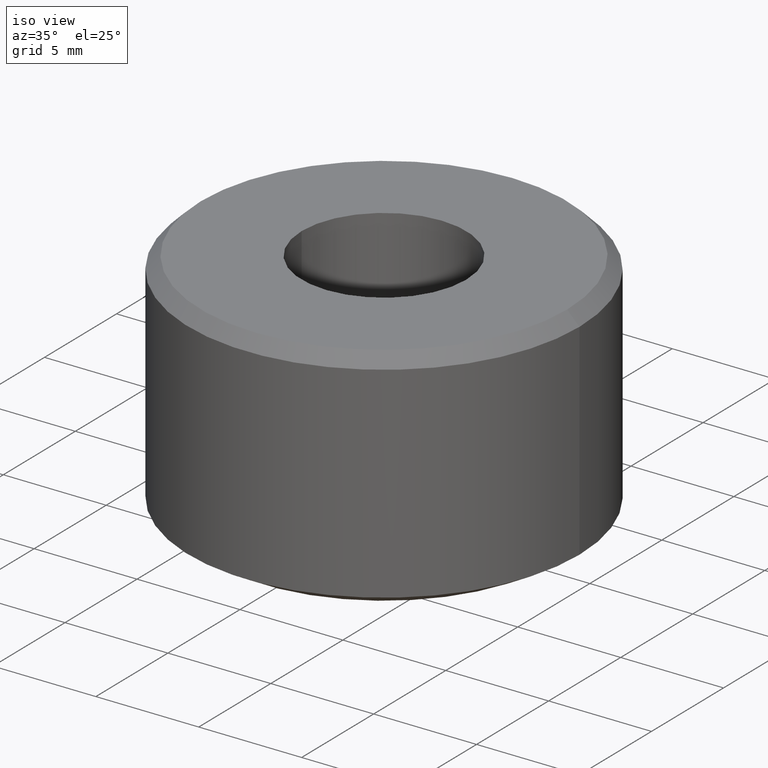
[diagram: clean part render]
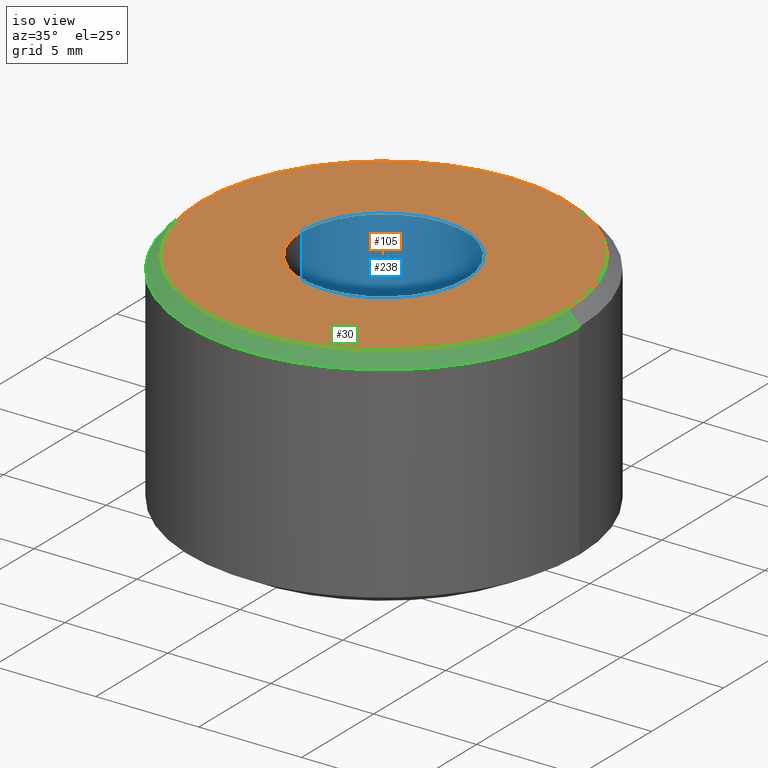
[diagram: same view with three faces highlighted in distinct colors, each labeled with its STEP entity id]
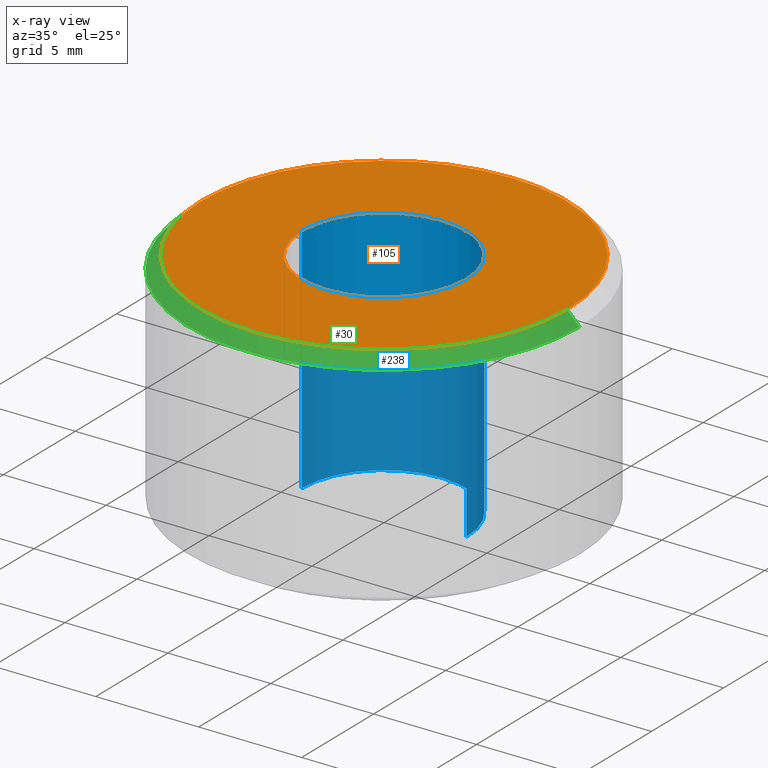
[diagram: x-ray of the same camera — body ghosted, the three highlighted faces saturated]
A machine part, iso view with three faces highlighted in distinct colors.
The next image is the same camera in x-ray (body ghosted, the three faces saturated) — at least one of them is partly hidden behind the body in this view.
Their STEP definitions:

[orange] entity #105 — the highlighted planar face has unit normal (0, 0, -1).
#5 = FACE_OUTER_BOUND ( 'NONE', #291, .T. ) ;
#9 = VERTEX_POINT ( 'NONE', #67 ) ;
#13 = CIRCLE ( 'NONE', #83, 8.900000000000249000 ) ;
#15 = AXIS2_PLACEMENT_3D ( 'NONE', #348, #104, #188 ) ;
#39 = VERTEX_POINT ( 'NONE', #250 ) ;
#40 = VERTEX_POINT ( 'NONE', #340 ) ;
#41 = DIRECTION ( 'NONE',  ( -0.0000000000000000000, -0.0000000000000000000, 1.000000000000000000 ) ) ;
#50 = DIRECTION ( 'NONE',  ( 1.000000000000000000, 0.0000000000000000000, 0.0000000000000000000 ) ) ;
#51 = EDGE_CURVE ( 'NONE', #39, #9, #344, .T. ) ;
#67 = CARTESIAN_POINT ( 'NONE',  ( -8.900000000000249000, 0.0000000000000000000, 11.29999999999969200 ) ) ;
#71 = EDGE_CURVE ( 'NONE', #40, #255, #140, .T. ) ;
#83 = AXIS2_PLACEMENT_3D ( 'NONE', #148, #126, #50 ) ;
#90 = CARTESIAN_POINT ( 'NONE',  ( 0.0000000000000000000, 0.0000000000000000000, 11.29999999999969000 ) ) ;
#94 = ORIENTED_EDGE ( 'NONE', *, *, #51, .T. ) ;
#104 = DIRECTION ( 'NONE',  ( -0.0000000000000000000, -0.0000000000000000000, 1.000000000000000000 ) ) ;
#105 = ADVANCED_FACE ( 'NONE', ( #259, #5 ), #275, .F. ) ;
#118 = DIRECTION ( 'NONE',  ( -0.0000000000000000000, -0.0000000000000000000, 1.000000000000000000 ) ) ;
#126 = DIRECTION ( 'NONE',  ( -0.0000000000000000000, -0.0000000000000000000, 1.000000000000000000 ) ) ;
#135 = EDGE_CURVE ( 'NONE', #255, #40, #252, .T. ) ;
#139 = ORIENTED_EDGE ( 'NONE', *, *, #301, .T. ) ;
#140 = CIRCLE ( 'NONE', #191, 4.000000000000000000 ) ;
#142 = DIRECTION ( 'NONE',  ( 1.000000000000000000, 0.0000000000000000000, 0.0000000000000000000 ) ) ;
#146 = EDGE_LOOP ( 'NONE', ( #147, #281 ) ) ;
#147 = ORIENTED_EDGE ( 'NONE', *, *, #71, .F. ) ;
#148 = CARTESIAN_POINT ( 'NONE',  ( 0.0000000000000000000, 0.0000000000000000000, 11.29999999999969200 ) ) ;
#167 = DIRECTION ( 'NONE',  ( -1.000000000000000000, 0.0000000000000000000, -0.0000000000000000000 ) ) ;
#188 = DIRECTION ( 'NONE',  ( 1.000000000000000000, 0.0000000000000000000, 0.0000000000000000000 ) ) ;
#189 = AXIS2_PLACEMENT_3D ( 'NONE', #90, #311, #167 ) ;
#191 = AXIS2_PLACEMENT_3D ( 'NONE', #322, #118, #220 ) ;
#220 = DIRECTION ( 'NONE',  ( 1.000000000000000000, 0.0000000000000000000, 0.0000000000000000000 ) ) ;
#250 = CARTESIAN_POINT ( 'NONE',  ( 8.900000000000249000, 1.126675055215580800E-015, 11.29999999999969200 ) ) ;
#252 = CIRCLE ( 'NONE', #349, 4.000000000000000000 ) ;
#255 = VERTEX_POINT ( 'NONE', #258 ) ;
#258 = CARTESIAN_POINT ( 'NONE',  ( -4.000000000000000000, 4.898587196589412800E-016, 11.29999999999969200 ) ) ;
#259 = FACE_BOUND ( 'NONE', #146, .T. ) ;
#275 = PLANE ( 'NONE',  #189 ) ;
#281 = ORIENTED_EDGE ( 'NONE', *, *, #135, .F. ) ;
#282 = CARTESIAN_POINT ( 'NONE',  ( 0.0000000000000000000, 0.0000000000000000000, 11.29999999999969200 ) ) ;
#291 = EDGE_LOOP ( 'NONE', ( #139, #94 ) ) ;
#301 = EDGE_CURVE ( 'NONE', #9, #39, #13, .T. ) ;
#311 = DIRECTION ( 'NONE',  ( 0.0000000000000000000, 0.0000000000000000000, -1.000000000000000000 ) ) ;
#322 = CARTESIAN_POINT ( 'NONE',  ( 0.0000000000000000000, 0.0000000000000000000, 11.29999999999969200 ) ) ;
#340 = CARTESIAN_POINT ( 'NONE',  ( 4.000000000000000000, 0.0000000000000000000, 11.29999999999969200 ) ) ;
#344 = CIRCLE ( 'NONE', #15, 8.900000000000249000 ) ;
#348 = CARTESIAN_POINT ( 'NONE',  ( 0.0000000000000000000, 0.0000000000000000000, 11.29999999999969200 ) ) ;
#349 = AXIS2_PLACEMENT_3D ( 'NONE', #282, #41, #142 ) ;

[blue] entity #238 — the highlighted cylindrical surface (partial cylindrical patch) has radius 4 mm, axis along (-0, -0, 1).
#8 = VERTEX_POINT ( 'NONE', #235 ) ;
#19 = ORIENTED_EDGE ( 'NONE', *, *, #78, .F. ) ;
#37 = DIRECTION ( 'NONE',  ( -0.0000000000000000000, -0.0000000000000000000, 1.000000000000000000 ) ) ;
#40 = VERTEX_POINT ( 'NONE', #340 ) ;
#49 = LINE ( 'NONE', #326, #314 ) ;
#71 = EDGE_CURVE ( 'NONE', #40, #255, #140, .T. ) ;
#78 = EDGE_CURVE ( 'NONE', #8, #264, #213, .T. ) ;
#89 = VECTOR ( 'NONE', #232, 1000.000000000000000 ) ;
#91 = AXIS2_PLACEMENT_3D ( 'NONE', #267, #239, #234 ) ;
#101 = AXIS2_PLACEMENT_3D ( 'NONE', #181, #178, #265 ) ;
#115 = ORIENTED_EDGE ( 'NONE', *, *, #323, .T. ) ;
#118 = DIRECTION ( 'NONE',  ( -0.0000000000000000000, -0.0000000000000000000, 1.000000000000000000 ) ) ;
#140 = CIRCLE ( 'NONE', #191, 4.000000000000000000 ) ;
#159 = CARTESIAN_POINT ( 'NONE',  ( -4.000000000000000000, 4.898587196589412800E-016, -2.706168622523819100E-013 ) ) ;
#161 = ORIENTED_EDGE ( 'NONE', *, *, #166, .F. ) ;
#166 = EDGE_CURVE ( 'NONE', #264, #255, #49, .T. ) ;
#175 = CYLINDRICAL_SURFACE ( 'NONE', #101, 4.000000000000000000 ) ;
#178 = DIRECTION ( 'NONE',  ( -0.0000000000000000000, -0.0000000000000000000, 1.000000000000000000 ) ) ;
#181 = CARTESIAN_POINT ( 'NONE',  ( 0.0000000000000000000, 0.0000000000000000000, 54.19208278002274400 ) ) ;
#191 = AXIS2_PLACEMENT_3D ( 'NONE', #322, #118, #220 ) ;
#210 = ORIENTED_EDGE ( 'NONE', *, *, #71, .T. ) ;
#213 = CIRCLE ( 'NONE', #91, 4.000000000000000000 ) ;
#216 = EDGE_LOOP ( 'NONE', ( #161, #19, #115, #210 ) ) ;
#220 = DIRECTION ( 'NONE',  ( 1.000000000000000000, 0.0000000000000000000, 0.0000000000000000000 ) ) ;
#232 = DIRECTION ( 'NONE',  ( -0.0000000000000000000, -0.0000000000000000000, 1.000000000000000000 ) ) ;
#234 = DIRECTION ( 'NONE',  ( 1.000000000000000000, 0.0000000000000000000, 0.0000000000000000000 ) ) ;
#235 = CARTESIAN_POINT ( 'NONE',  ( 4.000000000000000000, 0.0000000000000000000, -2.706168622523819100E-013 ) ) ;
#238 = ADVANCED_FACE ( 'NONE', ( #246 ), #175, .F. ) ;
#239 = DIRECTION ( 'NONE',  ( -0.0000000000000000000, -0.0000000000000000000, 1.000000000000000000 ) ) ;
#246 = FACE_OUTER_BOUND ( 'NONE', #216, .T. ) ;
#255 = VERTEX_POINT ( 'NONE', #258 ) ;
#258 = CARTESIAN_POINT ( 'NONE',  ( -4.000000000000000000, 4.898587196589412800E-016, 11.29999999999969200 ) ) ;
#264 = VERTEX_POINT ( 'NONE', #159 ) ;
#265 = DIRECTION ( 'NONE',  ( 1.000000000000000000, 0.0000000000000000000, 0.0000000000000000000 ) ) ;
#267 = CARTESIAN_POINT ( 'NONE',  ( 0.0000000000000000000, 0.0000000000000000000, -2.706168622523819100E-013 ) ) ;
#295 = LINE ( 'NONE', #304, #89 ) ;
#304 = CARTESIAN_POINT ( 'NONE',  ( 4.000000000000000000, 0.0000000000000000000, 54.19208278002274400 ) ) ;
#314 = VECTOR ( 'NONE', #37, 1000.000000000000000 ) ;
#322 = CARTESIAN_POINT ( 'NONE',  ( 0.0000000000000000000, 0.0000000000000000000, 11.29999999999969200 ) ) ;
#323 = EDGE_CURVE ( 'NONE', #8, #40, #295, .T. ) ;
#326 = CARTESIAN_POINT ( 'NONE',  ( -4.000000000000000000, 4.898587196589412800E-016, 54.19208278002274400 ) ) ;
#340 = CARTESIAN_POINT ( 'NONE',  ( 4.000000000000000000, 0.0000000000000000000, 11.29999999999969200 ) ) ;

[green] entity #30 — the highlighted conical surface has half-angle 45 deg.
#9 = VERTEX_POINT ( 'NONE', #67 ) ;
#13 = CIRCLE ( 'NONE', #83, 8.900000000000249000 ) ;
#14 = ORIENTED_EDGE ( 'NONE', *, *, #114, .T. ) ;
#17 = ORIENTED_EDGE ( 'NONE', *, *, #301, .F. ) ;
#30 = ADVANCED_FACE ( 'NONE', ( #128 ), #207, .T. ) ;
#38 = EDGE_CURVE ( 'NONE', #9, #276, #269, .T. ) ;
#39 = VERTEX_POINT ( 'NONE', #250 ) ;
#45 = CARTESIAN_POINT ( 'NONE',  ( -9.500000000000008900, 0.0000000000000000000, 10.69999999999993200 ) ) ;
#50 = DIRECTION ( 'NONE',  ( 1.000000000000000000, 0.0000000000000000000, 0.0000000000000000000 ) ) ;
#58 = CARTESIAN_POINT ( 'NONE',  ( 9.500000000000008900, 0.0000000000000000000, 10.69999999999993200 ) ) ;
#60 = CIRCLE ( 'NONE', #103, 9.500000000000008900 ) ;
#66 = VECTOR ( 'NONE', #237, 999.9999999999998900 ) ;
#67 = CARTESIAN_POINT ( 'NONE',  ( -8.900000000000249000, 0.0000000000000000000, 11.29999999999969200 ) ) ;
#83 = AXIS2_PLACEMENT_3D ( 'NONE', #148, #126, #50 ) ;
#96 = AXIS2_PLACEMENT_3D ( 'NONE', #257, #102, #297 ) ;
#102 = DIRECTION ( 'NONE',  ( 0.0000000000000000000, 0.0000000000000000000, -1.000000000000000000 ) ) ;
#103 = AXIS2_PLACEMENT_3D ( 'NONE', #172, #116, #299 ) ;
#114 = EDGE_CURVE ( 'NONE', #276, #288, #60, .T. ) ;
#116 = DIRECTION ( 'NONE',  ( -0.0000000000000000000, -0.0000000000000000000, 1.000000000000000000 ) ) ;
#120 = EDGE_LOOP ( 'NONE', ( #280, #17, #347, #14 ) ) ;
#126 = DIRECTION ( 'NONE',  ( -0.0000000000000000000, -0.0000000000000000000, 1.000000000000000000 ) ) ;
#128 = FACE_OUTER_BOUND ( 'NONE', #120, .T. ) ;
#129 = DIRECTION ( 'NONE',  ( 0.7071067811865464600, 8.659560562354921800E-017, -0.7071067811865486800 ) ) ;
#148 = CARTESIAN_POINT ( 'NONE',  ( 0.0000000000000000000, 0.0000000000000000000, 11.29999999999969200 ) ) ;
#168 = LINE ( 'NONE', #243, #224 ) ;
#172 = CARTESIAN_POINT ( 'NONE',  ( 0.0000000000000000000, 0.0000000000000000000, 10.69999999999993200 ) ) ;
#207 = CONICAL_SURFACE ( 'NONE', #96, 9.500000000000008900, 0.7853981633974468400 ) ;
#208 = CARTESIAN_POINT ( 'NONE',  ( -9.500000000000008900, 1.163414459189986700E-015, 10.69999999999993200 ) ) ;
#224 = VECTOR ( 'NONE', #129, 999.9999999999998900 ) ;
#237 = DIRECTION ( 'NONE',  ( -0.7071067811865464600, 0.0000000000000000000, -0.7071067811865486800 ) ) ;
#243 = CARTESIAN_POINT ( 'NONE',  ( 9.500000000000008900, 1.163414459189986700E-015, 10.69999999999993200 ) ) ;
#250 = CARTESIAN_POINT ( 'NONE',  ( 8.900000000000249000, 1.126675055215580800E-015, 11.29999999999969200 ) ) ;
#257 = CARTESIAN_POINT ( 'NONE',  ( 0.0000000000000000000, 0.0000000000000000000, 10.69999999999993200 ) ) ;
#269 = LINE ( 'NONE', #45, #66 ) ;
#276 = VERTEX_POINT ( 'NONE', #208 ) ;
#280 = ORIENTED_EDGE ( 'NONE', *, *, #305, .F. ) ;
#288 = VERTEX_POINT ( 'NONE', #58 ) ;
#297 = DIRECTION ( 'NONE',  ( -1.000000000000000000, 0.0000000000000000000, 0.0000000000000000000 ) ) ;
#299 = DIRECTION ( 'NONE',  ( 1.000000000000000000, 0.0000000000000000000, 0.0000000000000000000 ) ) ;
#301 = EDGE_CURVE ( 'NONE', #9, #39, #13, .T. ) ;
#305 = EDGE_CURVE ( 'NONE', #39, #288, #168, .T. ) ;
#347 = ORIENTED_EDGE ( 'NONE', *, *, #38, .T. ) ;